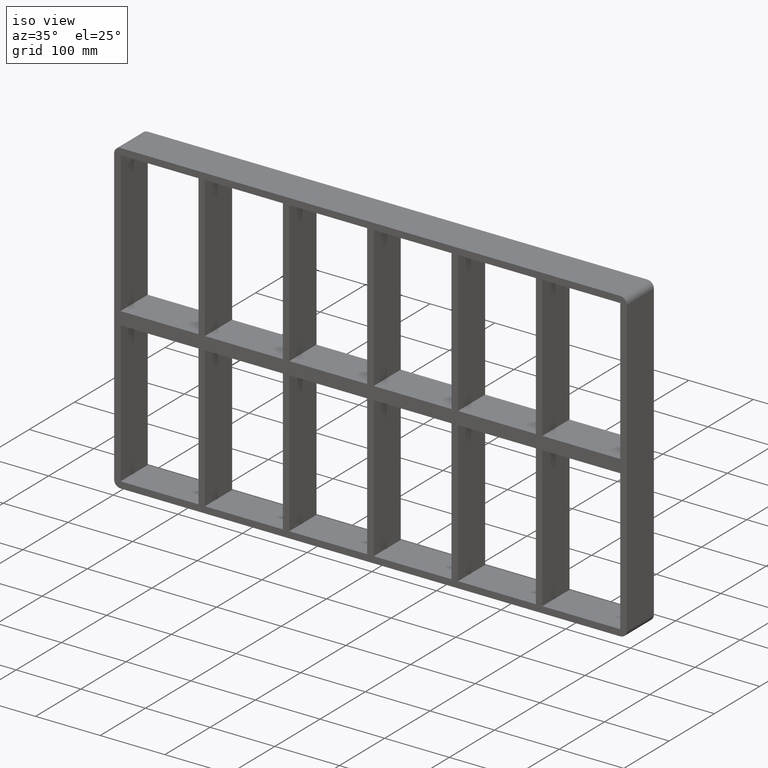
[diagram: clean part render]
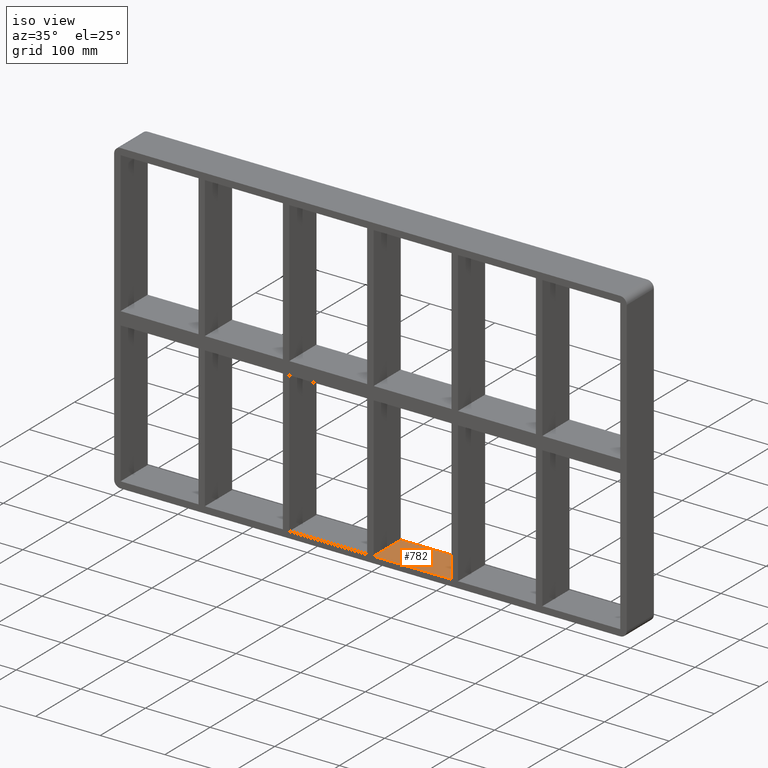
[diagram: same view with one face highlighted and labeled with its STEP entity id]
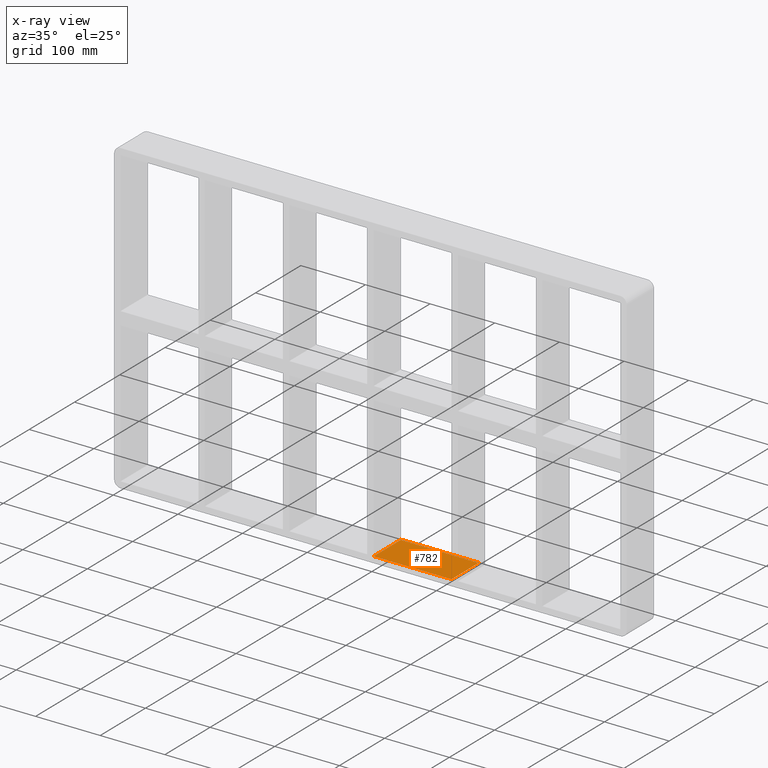
[diagram: x-ray of the same camera — body ghosted, the highlighted face saturated]
A machine part, iso view. The second image highlights one B-rep face of the part: STEP entity #782.
The next image is the same camera in x-ray: the body ghosted, the highlighted face saturated — about 0% of this face is hidden behind the body in this view.
In plain terms, the highlighted planar face has unit normal (0, 0, -1).
Its self-contained STEP definition (entity closure, byte-faithful):
#283=CARTESIAN_POINT('',(125.49999999999876,57.0,-227.99999999999997));
#284=VERTEX_POINT('',#283);
#291=CARTESIAN_POINT('',(125.49999999999876,-3.0,-227.99999999999997));
#292=VERTEX_POINT('',#291);
#293=CARTESIAN_POINT('',(125.49999999999876,-3.0,-227.99999999999997));
#294=DIRECTION('',(0.0,1.0,0.0));
#295=VECTOR('',#294,60.000000000000007);
#296=LINE('',#293,#295);
#297=EDGE_CURVE('',#292,#284,#296,.T.);
#523=CARTESIAN_POINT('',(4.999999999996376,-3.0,-227.99999999998417));
#524=VERTEX_POINT('',#523);
#531=CARTESIAN_POINT('',(4.999999999996376,57.0,-227.9999999999842));
#532=VERTEX_POINT('',#531);
#533=CARTESIAN_POINT('',(4.999999999996376,57.000000000000007,-227.99999999999997));
#534=DIRECTION('',(0.0,-1.0,0.0));
#535=VECTOR('',#534,60.000000000000007);
#536=LINE('',#533,#535);
#537=EDGE_CURVE('',#532,#524,#536,.T.);
#761=CARTESIAN_POINT('',(386.50000000000011,0.0,-227.99999999999997));
#762=DIRECTION('',(0.0,0.0,-1.0));
#763=DIRECTION('',(-1.0,0.0,0.0));
#764=AXIS2_PLACEMENT_3D('',#761,#762,#763);
#765=PLANE('',#764);
#766=ORIENTED_EDGE('',*,*,#297,.T.);
#767=CARTESIAN_POINT('',(4.999999999996362,57.0,-227.99999999999997));
#768=DIRECTION('',(1.0,0.0,0.0));
#769=VECTOR('',#768,120.50000000000239);
#770=LINE('',#767,#769);
#771=EDGE_CURVE('',#532,#284,#770,.T.);
#772=ORIENTED_EDGE('',*,*,#771,.F.);
#773=ORIENTED_EDGE('',*,*,#537,.T.);
#774=CARTESIAN_POINT('',(125.49999999999875,-3.0,-227.99999999999997));
#775=DIRECTION('',(-1.0,0.0,0.0));
#776=VECTOR('',#775,120.50000000000239);
#777=LINE('',#774,#776);
#778=EDGE_CURVE('',#292,#524,#777,.T.);
#779=ORIENTED_EDGE('',*,*,#778,.F.);
#780=EDGE_LOOP('',(#766,#772,#773,#779));
#781=FACE_OUTER_BOUND('',#780,.T.);
#782=ADVANCED_FACE('',(#781),#765,.F.);